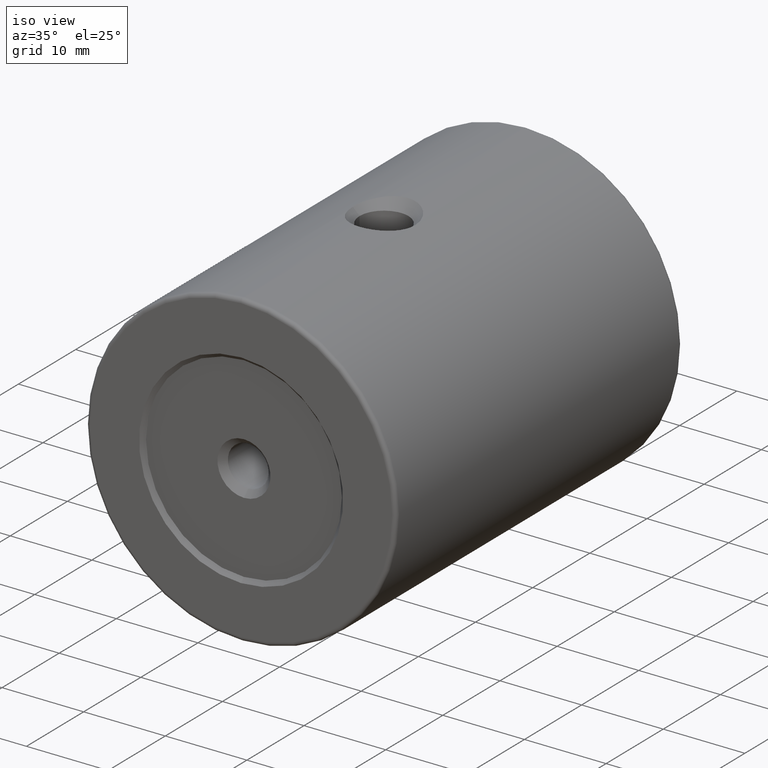
[diagram: clean part render]
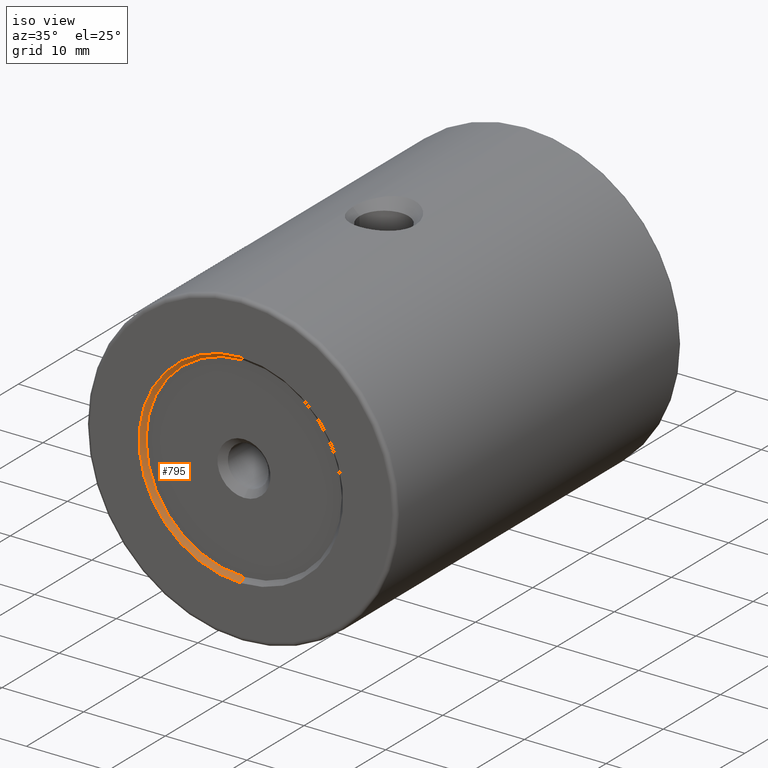
[diagram: same view with one face highlighted and labeled with its STEP entity id]
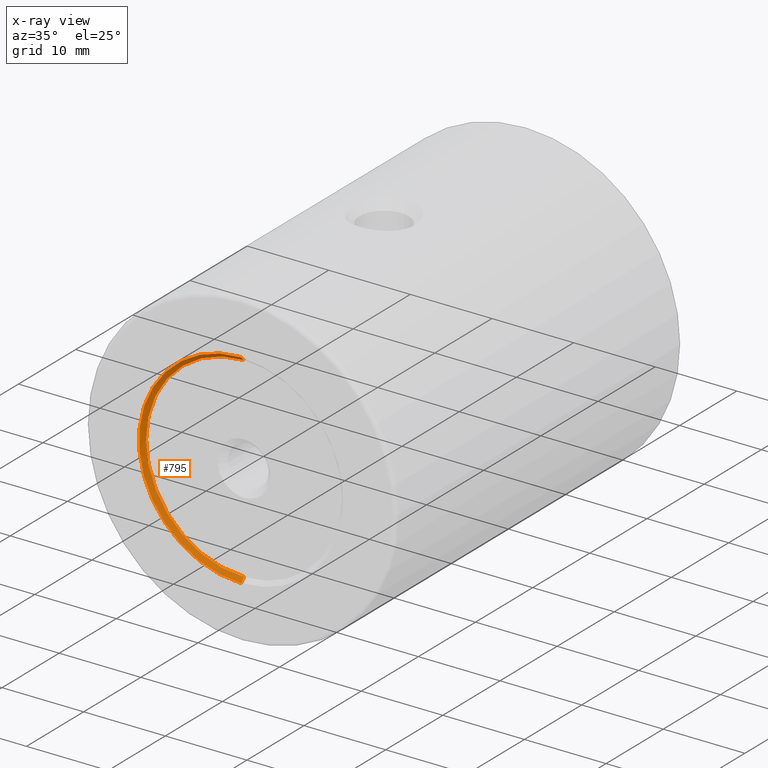
[diagram: x-ray of the same camera — body ghosted, the highlighted face saturated]
A machine part, iso view. The second image highlights one B-rep face of the part: STEP entity #795.
The next image is the same camera in x-ray: the body ghosted, the highlighted face saturated — about 0% of this face is hidden behind the body in this view.
In plain terms, the highlighted conical surface has half-angle 45 deg.
Its self-contained STEP definition (entity closure, byte-faithful):
#8 = DIRECTION ( 'NONE',  ( -0.0000000000000000000, 1.000000000000000000, -0.0000000000000000000 ) ) ;
#15 = CARTESIAN_POINT ( 'NONE',  ( -85.22679983354142053, -29.26133999167428357, 387.5000000000000000 ) ) ;
#23 = EDGE_CURVE ( 'NONE', #875, #540, #335, .T. ) ;
#39 = ORIENTED_EDGE ( 'NONE', *, *, #440, .F. ) ;
#51 = CARTESIAN_POINT ( 'NONE',  ( -85.22679983354142053, -29.26133999167428357, 412.5000000000000568 ) ) ;
#52 = ORIENTED_EDGE ( 'NONE', *, *, #593, .F. ) ;
#53 = AXIS2_PLACEMENT_3D ( 'NONE', #918, #405, #389 ) ;
#74 = VECTOR ( 'NONE', #809, 1000.000000000000000 ) ;
#191 = CONICAL_SURFACE ( 'NONE', #378, 12.50000000000001066, 0.7853981633974500554 ) ;
#198 = LINE ( 'NONE', #422, #900 ) ;
#199 = CARTESIAN_POINT ( 'NONE',  ( -85.22679983354142053, -29.26133999167428357, 400.0000000000000000 ) ) ;
#232 = CARTESIAN_POINT ( 'NONE',  ( -85.22679983354142053, -28.76133999167428357, 400.0000000000000000 ) ) ;
#269 = CIRCLE ( 'NONE', #404, 12.00000000000001066 ) ;
#335 = LINE ( 'NONE', #498, #74 ) ;
#346 = DIRECTION ( 'NONE',  ( -8.659560562354948882E-17, -0.7071067811865463515, -0.7071067811865487940 ) ) ;
#378 = AXIS2_PLACEMENT_3D ( 'NONE', #199, #915, #515 ) ;
#389 = DIRECTION ( 'NONE',  ( 0.0000000000000000000, 0.0000000000000000000, 1.000000000000000000 ) ) ;
#398 = ORIENTED_EDGE ( 'NONE', *, *, #596, .T. ) ;
#404 = AXIS2_PLACEMENT_3D ( 'NONE', #232, #8, #1010 ) ;
#405 = DIRECTION ( 'NONE',  ( -0.0000000000000000000, 1.000000000000000000, -0.0000000000000000000 ) ) ;
#422 = CARTESIAN_POINT ( 'NONE',  ( -85.22679983354142053, -29.26133999167428357, 387.5000000000000000 ) ) ;
#440 = EDGE_CURVE ( 'NONE', #586, #729, #198, .T. ) ;
#475 = CARTESIAN_POINT ( 'NONE',  ( -85.22679983354142053, -28.76133999167428357, 412.0000000000000568 ) ) ;
#498 = CARTESIAN_POINT ( 'NONE',  ( -85.22679983354142053, -29.26133999167428357, 412.5000000000000568 ) ) ;
#500 = CIRCLE ( 'NONE', #53, 12.50000000000001066 ) ;
#515 = DIRECTION ( 'NONE',  ( 0.0000000000000000000, 0.0000000000000000000, 1.000000000000000000 ) ) ;
#540 = VERTEX_POINT ( 'NONE', #51 ) ;
#586 = VERTEX_POINT ( 'NONE', #612 ) ;
#593 = EDGE_CURVE ( 'NONE', #729, #540, #500, .T. ) ;
#596 = EDGE_CURVE ( 'NONE', #586, #875, #269, .T. ) ;
#612 = CARTESIAN_POINT ( 'NONE',  ( -85.22679983354142053, -28.76133999167428357, 388.0000000000000000 ) ) ;
#613 = EDGE_LOOP ( 'NONE', ( #39, #398, #936, #52 ) ) ;
#729 = VERTEX_POINT ( 'NONE', #15 ) ;
#795 = ADVANCED_FACE ( 'NONE', ( #828 ), #191, .F. ) ;
#809 = DIRECTION ( 'NONE',  ( 0.0000000000000000000, -0.7071067811865463515, 0.7071067811865487940 ) ) ;
#828 = FACE_OUTER_BOUND ( 'NONE', #613, .T. ) ;
#875 = VERTEX_POINT ( 'NONE', #475 ) ;
#900 = VECTOR ( 'NONE', #346, 1000.000000000000000 ) ;
#915 = DIRECTION ( 'NONE',  ( -0.0000000000000000000, -1.000000000000000000, -0.0000000000000000000 ) ) ;
#918 = CARTESIAN_POINT ( 'NONE',  ( -85.22679983354142053, -29.26133999167428357, 400.0000000000000000 ) ) ;
#936 = ORIENTED_EDGE ( 'NONE', *, *, #23, .T. ) ;
#1010 = DIRECTION ( 'NONE',  ( 0.0000000000000000000, 0.0000000000000000000, -1.000000000000000000 ) ) ;